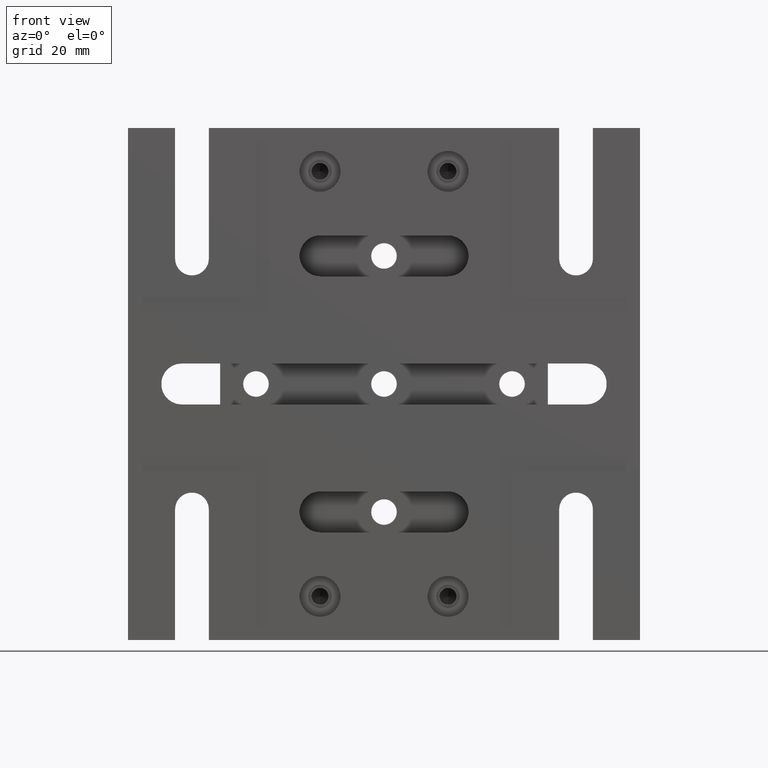
[diagram: clean part render]
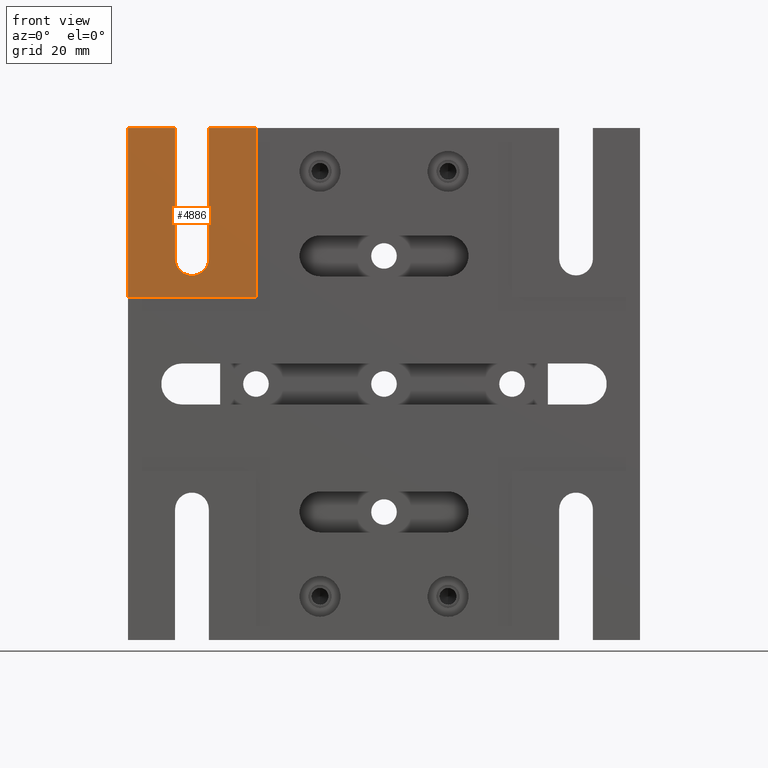
[diagram: same view with one face highlighted and labeled with its STEP entity id]
A machine part, front view. The second image highlights one B-rep face of the part: STEP entity #4886.
In plain terms, the highlighted planar face has unit normal (-0, -1, 0).
Its self-contained STEP definition (entity closure, byte-faithful):
#45 = LINE ( 'NONE', #56, #266 ) ;
#56 = CARTESIAN_POINT ( 'NONE',  ( -50.00000000000001400, -1.365256460990644400E-030, -49.99999999999999300 ) ) ;
#92 = AXIS2_PLACEMENT_3D ( 'NONE', #5298, #2633, #3089 ) ;
#135 = DIRECTION ( 'NONE',  ( -2.280305089577817700E-047, -1.000000000000000000, 2.730512921981286600E-032 ) ) ;
#231 = VECTOR ( 'NONE', #5376, 1000.000000000000000 ) ;
#266 = VECTOR ( 'NONE', #3658, 1000.000000000000000 ) ;
#452 = ORIENTED_EDGE ( 'NONE', *, *, #1103, .T. ) ;
#496 = VECTOR ( 'NONE', #4207, 1000.000000000000000 ) ;
#602 = DIRECTION ( 'NONE',  ( 2.612385134603822900E-016, 2.730512921981286600E-032, 1.000000000000000000 ) ) ;
#639 = DIRECTION ( 'NONE',  ( -1.000000000000000000, -2.624149959102947600E-047, 1.224606353822377300E-016 ) ) ;
#734 = VECTOR ( 'NONE', #1208, 1000.000000000000000 ) ;
#754 = VERTEX_POINT ( 'NONE', #3766 ) ;
#835 = EDGE_CURVE ( 'NONE', #3911, #5091, #876, .T. ) ;
#861 = CARTESIAN_POINT ( 'NONE',  ( -37.49999999999999300, 6.689756658854147000E-031, 24.50000000000001400 ) ) ;
#876 = LINE ( 'NONE', #4753, #734 ) ;
#917 = EDGE_CURVE ( 'NONE', #3088, #2464, #1625, .T. ) ;
#1103 = EDGE_CURVE ( 'NONE', #1535, #754, #2759, .T. ) ;
#1208 = DIRECTION ( 'NONE',  ( 1.224606353822377300E-016, 2.730512921981286600E-032, 1.000000000000000000 ) ) ;
#1284 = ORIENTED_EDGE ( 'NONE', *, *, #1978, .T. ) ;
#1527 = DIRECTION ( 'NONE',  ( 1.000000000000000000, 2.245215169725430400E-047, -2.612385134603822900E-016 ) ) ;
#1535 = VERTEX_POINT ( 'NONE', #3841 ) ;
#1557 = ORIENTED_EDGE ( 'NONE', *, *, #917, .T. ) ;
#1625 = CIRCLE ( 'NONE', #92, 3.299999999999994000 ) ;
#1756 = VECTOR ( 'NONE', #1527, 1000.000000000000000 ) ;
#1900 = CARTESIAN_POINT ( 'NONE',  ( -40.79999999999999000, 6.689756658854145300E-031, 24.50000000000001800 ) ) ;
#1932 = VECTOR ( 'NONE', #639, 1000.000000000000000 ) ;
#1939 = ORIENTED_EDGE ( 'NONE', *, *, #835, .T. ) ;
#1958 = CARTESIAN_POINT ( 'NONE',  ( -49.99999999999998600, 1.365256460990641900E-030, 50.00000000000000700 ) ) ;
#1978 = EDGE_CURVE ( 'NONE', #4034, #3911, #4140, .T. ) ;
#2023 = CIRCLE ( 'NONE', #2850, 3.299999999999994000 ) ;
#2146 = DIRECTION ( 'NONE',  ( 0.0000000000000000000, -2.730512921981285500E-032, -1.000000000000000000 ) ) ;
#2243 = CARTESIAN_POINT ( 'NONE',  ( -34.19999999999998900, 1.365256460990642800E-030, 50.00000000000001400 ) ) ;
#2247 = AXIS2_PLACEMENT_3D ( 'NONE', #2851, #135, #602 ) ;
#2416 = CARTESIAN_POINT ( 'NONE',  ( -40.79999999999998300, 1.365256460990642300E-030, 50.00000000000002100 ) ) ;
#2464 = VERTEX_POINT ( 'NONE', #1900 ) ;
#2504 = EDGE_CURVE ( 'NONE', #2464, #5274, #5243, .T. ) ;
#2633 = DIRECTION ( 'NONE',  ( 2.218897729836139900E-047, 1.000000000000000000, -2.965575351820868600E-032 ) ) ;
#2677 = CARTESIAN_POINT ( 'NONE',  ( -40.79999999999998300, 1.365256460990642300E-030, 50.00000000000002100 ) ) ;
#2686 = ORIENTED_EDGE ( 'NONE', *, *, #3900, .T. ) ;
#2759 = LINE ( 'NONE', #2243, #231 ) ;
#2810 = CARTESIAN_POINT ( 'NONE',  ( -25.00000000000000000, 4.641871967368181200E-031, 17.00000000000000700 ) ) ;
#2831 = PLANE ( 'NONE',  #2247 ) ;
#2850 = AXIS2_PLACEMENT_3D ( 'NONE', #861, #5736, #2146 ) ;
#2851 = CARTESIAN_POINT ( 'NONE',  ( 49.99999999999998600, -1.365256460990641900E-030, -50.00000000000000700 ) ) ;
#3086 = EDGE_CURVE ( 'NONE', #754, #3088, #2023, .T. ) ;
#3088 = VERTEX_POINT ( 'NONE', #4830 ) ;
#3089 = DIRECTION ( 'NONE',  ( 0.0000000000000000000, -2.730512921981285500E-032, -1.000000000000000000 ) ) ;
#3138 = VERTEX_POINT ( 'NONE', #4429 ) ;
#3168 = DIRECTION ( 'NONE',  ( -1.000000000000000000, -2.624149959102947600E-047, 1.224606353822377300E-016 ) ) ;
#3183 = ORIENTED_EDGE ( 'NONE', *, *, #4397, .T. ) ;
#3290 = EDGE_CURVE ( 'NONE', #5091, #1535, #4810, .T. ) ;
#3463 = ORIENTED_EDGE ( 'NONE', *, *, #3290, .T. ) ;
#3658 = DIRECTION ( 'NONE',  ( -2.612385134603822900E-016, -2.730512921981286600E-032, -1.000000000000000000 ) ) ;
#3766 = CARTESIAN_POINT ( 'NONE',  ( -34.19999999999999600, 6.689756658854145300E-031, 24.50000000000001800 ) ) ;
#3841 = CARTESIAN_POINT ( 'NONE',  ( -34.19999999999998900, 1.365256460990642800E-030, 50.00000000000001400 ) ) ;
#3900 = EDGE_CURVE ( 'NONE', #3138, #4034, #45, .T. ) ;
#3911 = VERTEX_POINT ( 'NONE', #2810 ) ;
#4034 = VERTEX_POINT ( 'NONE', #4723 ) ;
#4043 = CARTESIAN_POINT ( 'NONE',  ( -49.99999999999998600, 1.365256460990641900E-030, 50.00000000000000700 ) ) ;
#4140 = LINE ( 'NONE', #4197, #1756 ) ;
#4197 = CARTESIAN_POINT ( 'NONE',  ( -49.99999999999999300, 4.641871967368173300E-031, 17.00000000000001400 ) ) ;
#4207 = DIRECTION ( 'NONE',  ( 2.612385134603822900E-016, 2.730512921981286600E-032, 1.000000000000000000 ) ) ;
#4304 = FACE_OUTER_BOUND ( 'NONE', #5579, .T. ) ;
#4330 = VECTOR ( 'NONE', #3168, 1000.000000000000000 ) ;
#4397 = EDGE_CURVE ( 'NONE', #5274, #3138, #5222, .T. ) ;
#4429 = CARTESIAN_POINT ( 'NONE',  ( -49.99999999999998600, 1.365256460990641900E-030, 50.00000000000000700 ) ) ;
#4723 = CARTESIAN_POINT ( 'NONE',  ( -49.99999999999999300, 4.641871967368173300E-031, 17.00000000000001400 ) ) ;
#4741 = CARTESIAN_POINT ( 'NONE',  ( -24.99999999999999300, 1.365256460990642600E-030, 50.00000000000000700 ) ) ;
#4753 = CARTESIAN_POINT ( 'NONE',  ( -25.00000000000000700, -1.365256460990644000E-030, -50.00000000000000700 ) ) ;
#4810 = LINE ( 'NONE', #4043, #4330 ) ;
#4830 = CARTESIAN_POINT ( 'NONE',  ( -37.49999999999999300, 5.711116792753262100E-031, 21.20000000000002100 ) ) ;
#4886 = ADVANCED_FACE ( 'NONE', ( #4304 ), #2831, .T. ) ;
#5091 = VERTEX_POINT ( 'NONE', #4741 ) ;
#5222 = LINE ( 'NONE', #1958, #1932 ) ;
#5243 = LINE ( 'NONE', #2416, #496 ) ;
#5274 = VERTEX_POINT ( 'NONE', #2677 ) ;
#5298 = CARTESIAN_POINT ( 'NONE',  ( -37.49999999999999300, 6.689756658854147000E-031, 24.50000000000001400 ) ) ;
#5376 = DIRECTION ( 'NONE',  ( -2.612385134603822900E-016, -2.730512921981286600E-032, -1.000000000000000000 ) ) ;
#5392 = ORIENTED_EDGE ( 'NONE', *, *, #2504, .T. ) ;
#5579 = EDGE_LOOP ( 'NONE', ( #5392, #3183, #2686, #1284, #1939, #3463, #452, #5770, #1557 ) ) ;
#5736 = DIRECTION ( 'NONE',  ( 2.218897729836139900E-047, 1.000000000000000000, -2.965575351820868600E-032 ) ) ;
#5770 = ORIENTED_EDGE ( 'NONE', *, *, #3086, .T. ) ;